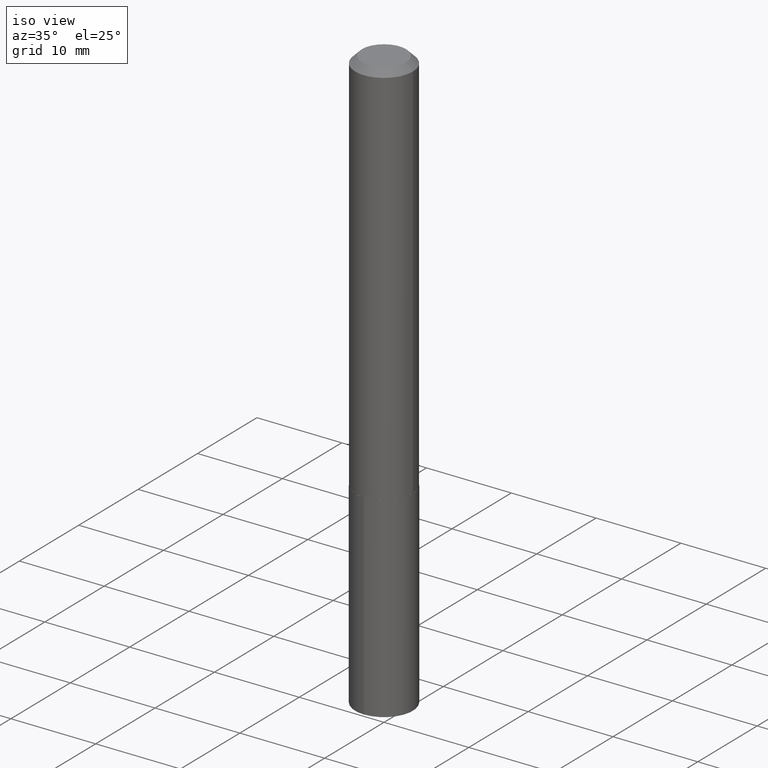
[diagram: clean part render]
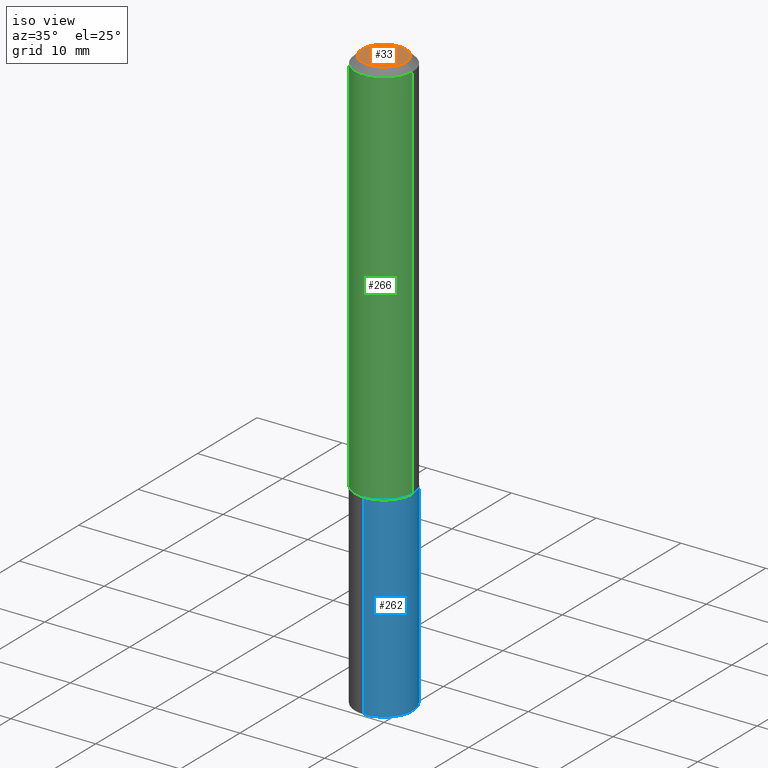
[diagram: same view with three faces highlighted in distinct colors, each labeled with its STEP entity id]
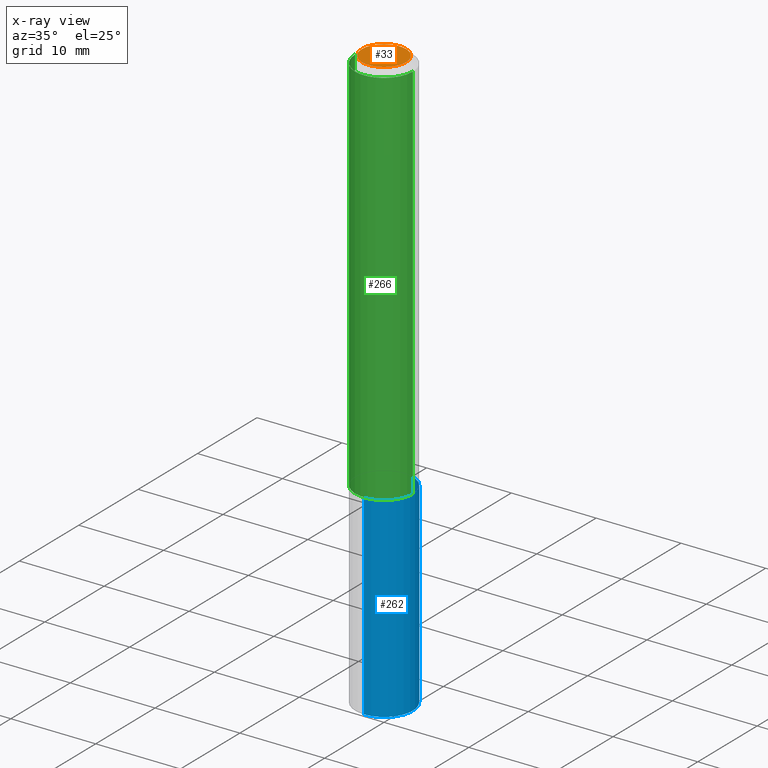
[diagram: x-ray of the same camera — body ghosted, the three highlighted faces saturated]
A machine part, iso view with three faces highlighted in distinct colors.
The next image is the same camera in x-ray (body ghosted, the three faces saturated) — at least one of them is partly hidden behind the body in this view.
Their STEP definitions:

[orange] entity #33 — the highlighted planar face has unit normal (0, -0, -1).
#33 = ADVANCED_FACE ( 'NONE', ( #187 ), #276, .F. ) ;
#42 = ORIENTED_EDGE ( 'NONE', *, *, #190, .T. ) ;
#61 = DIRECTION ( 'NONE',  ( -2.445468806185136597E-29, 3.491481338843145583E-15, 1.000000000000000000 ) ) ;
#71 = CIRCLE ( 'NONE', #145, 0.1025999999999999829 ) ;
#102 = EDGE_CURVE ( 'NONE', #138, #316, #71, .T. ) ;
#106 = DIRECTION ( 'NONE',  ( -2.445468806185136597E-29, 3.491481338843145583E-15, 1.000000000000000000 ) ) ;
#138 = VERTEX_POINT ( 'NONE', #170 ) ;
#145 = AXIS2_PLACEMENT_3D ( 'NONE', #267, #106, #264 ) ;
#165 = ORIENTED_EDGE ( 'NONE', *, *, #102, .T. ) ;
#170 = CARTESIAN_POINT ( 'NONE',  ( 0.1025999999999999829, -8.656367717059636643E-16, -8.199010320285999093E-18 ) ) ;
#187 = FACE_OUTER_BOUND ( 'NONE', #292, .T. ) ;
#190 = EDGE_CURVE ( 'NONE', #316, #138, #207, .T. ) ;
#207 = CIRCLE ( 'NONE', #232, 0.1025999999999999829 ) ;
#232 = AXIS2_PLACEMENT_3D ( 'NONE', #368, #61, #233 ) ;
#233 = DIRECTION ( 'NONE',  ( 1.000000000000000000, -6.982962677686267499E-15, 4.875720559966382131E-29 ) ) ;
#264 = DIRECTION ( 'NONE',  ( 1.000000000000000000, -6.982962677686267499E-15, 4.875720559966382131E-29 ) ) ;
#267 = CARTESIAN_POINT ( 'NONE',  ( 2.005042397986293967E-46, -2.862669153028024165E-32, -8.199010320291530364E-18 ) ) ;
#276 = PLANE ( 'NONE',  #377 ) ;
#277 = CARTESIAN_POINT ( 'NONE',  ( -0.1025999999999999829, 7.710063666500343655E-16, -8.199010320296730375E-18 ) ) ;
#286 = DIRECTION ( 'NONE',  ( -1.000000000000000000, 6.982962677686265922E-15, -4.876176775795935793E-29 ) ) ;
#292 = EDGE_LOOP ( 'NONE', ( #42, #165 ) ) ;
#316 = VERTEX_POINT ( 'NONE', #277 ) ;
#317 = DIRECTION ( 'NONE',  ( 2.438088387897960049E-29, -3.491481338843145188E-15, -1.000000000000000000 ) ) ;
#340 = CARTESIAN_POINT ( 'NONE',  ( 1.002521198993146984E-46, -1.431334576514012082E-32, -4.099505160145765182E-18 ) ) ;
#368 = CARTESIAN_POINT ( 'NONE',  ( 2.005042397986293967E-46, -2.862669153028024165E-32, -8.199010320291530364E-18 ) ) ;
#377 = AXIS2_PLACEMENT_3D ( 'NONE', #340, #317, #286 ) ;

[blue] entity #262 — the highlighted cylindrical surface (edge-blend (fillet) strip) has radius 3.3998 mm, axis along (-0, 0, 1).
#2 = CARTESIAN_POINT ( 'NONE',  ( 4.409424804432420683E-29, -6.295490002068076239E-15, -1.803100000000000147 ) ) ;
#5 = DIRECTION ( 'NONE',  ( -2.446102130504644901E-29, 3.490574382371028182E-15, 1.000000000000000000 ) ) ;
#9 = DIRECTION ( 'NONE',  ( -6.982962677686265133E-15, -1.000000000000000000, 4.081954417130015942E-15 ) ) ;
#24 = DIRECTION ( 'NONE',  ( -2.446102130504644901E-29, 3.490574382371028182E-15, 1.000000000000000000 ) ) ;
#27 = AXIS2_PLACEMENT_3D ( 'NONE', #73, #115, #248 ) ;
#54 = CARTESIAN_POINT ( 'NONE',  ( -9.346695544082625583E-16, -0.1338500000000062973, -1.803099999999999703 ) ) ;
#73 = CARTESIAN_POINT ( 'NONE',  ( 6.636838695077328277E-29, -9.473997460388503922E-15, -2.713697257108548921 ) ) ;
#82 = CARTESIAN_POINT ( 'NONE',  ( 9.510614518149603401E-16, 0.1338499999999936685, -1.803100000000000813 ) ) ;
#83 = AXIS2_PLACEMENT_3D ( 'NONE', #372, #5, #9 ) ;
#108 = EDGE_CURVE ( 'NONE', #259, #124, #205, .T. ) ;
#109 = LINE ( 'NONE', #357, #136 ) ;
#110 = VERTEX_POINT ( 'NONE', #82 ) ;
#112 = EDGE_CURVE ( 'NONE', #259, #169, #373, .T. ) ;
#115 = DIRECTION ( 'NONE',  ( -2.446102130504644901E-29, 3.490574382371028182E-15, 1.000000000000000000 ) ) ;
#124 = VERTEX_POINT ( 'NONE', #54 ) ;
#135 = VECTOR ( 'NONE', #305, 39.37007874015748143 ) ;
#136 = VECTOR ( 'NONE', #308, 39.37007874015748143 ) ;
#169 = VERTEX_POINT ( 'NONE', #240 ) ;
#179 = CARTESIAN_POINT ( 'NONE',  ( -9.346695544082625583E-16, -0.1338500000000062973, -1.803099999999999703 ) ) ;
#184 = ORIENTED_EDGE ( 'NONE', *, *, #112, .T. ) ;
#186 = CARTESIAN_POINT ( 'NONE',  ( -9.346695544082404702E-16, -0.1338500000000095169, -2.713697257108548477 ) ) ;
#189 = CIRCLE ( 'NONE', #83, 0.1338499999999999968 ) ;
#198 = EDGE_CURVE ( 'NONE', #124, #110, #189, .T. ) ;
#205 = LINE ( 'NONE', #179, #135 ) ;
#217 = DIRECTION ( 'NONE',  ( -6.982962677686265133E-15, -1.000000000000000000, 4.081954417130015942E-15 ) ) ;
#240 = CARTESIAN_POINT ( 'NONE',  ( 9.510614518149607345E-16, 0.1338499999999905321, -2.713697257108549810 ) ) ;
#242 = AXIS2_PLACEMENT_3D ( 'NONE', #2, #24, #217 ) ;
#248 = DIRECTION ( 'NONE',  ( -6.982962677686265133E-15, -1.000000000000000000, 4.081954417130015942E-15 ) ) ;
#259 = VERTEX_POINT ( 'NONE', #186 ) ;
#262 = ADVANCED_FACE ( 'NONE', ( #301 ), #360, .T. ) ;
#301 = FACE_OUTER_BOUND ( 'NONE', #325, .T. ) ;
#305 = DIRECTION ( 'NONE',  ( -2.446102130504645182E-29, 3.490574382371027788E-15, 1.000000000000000000 ) ) ;
#308 = DIRECTION ( 'NONE',  ( -2.446102130504645182E-29, 3.490574382371027788E-15, 1.000000000000000000 ) ) ;
#325 = EDGE_LOOP ( 'NONE', ( #184, #370, #337, #374 ) ) ;
#337 = ORIENTED_EDGE ( 'NONE', *, *, #198, .F. ) ;
#342 = EDGE_CURVE ( 'NONE', #169, #110, #109, .T. ) ;
#357 = CARTESIAN_POINT ( 'NONE',  ( 9.510614518149380547E-16, 0.1338499999999936962, -1.803100000000000813 ) ) ;
#360 = CYLINDRICAL_SURFACE ( 'NONE', #242, 0.1338499999999999968 ) ;
#370 = ORIENTED_EDGE ( 'NONE', *, *, #342, .T. ) ;
#372 = CARTESIAN_POINT ( 'NONE',  ( 4.409424804432420683E-29, -6.295490002068076239E-15, -1.803100000000000147 ) ) ;
#373 = CIRCLE ( 'NONE', #27, 0.1338499999999999968 ) ;
#374 = ORIENTED_EDGE ( 'NONE', *, *, #108, .F. ) ;

[green] entity #266 — the highlighted cylindrical surface (edge-blend (fillet) strip) has radius 3.3998 mm, axis along (-0, 0, 1).
#11 = VECTOR ( 'NONE', #118, 39.37007874015748143 ) ;
#12 = CARTESIAN_POINT ( 'NONE',  ( -0.1338499999999999968, -2.250365074803857250E-15, -0.03125000000000022898 ) ) ;
#19 = AXIS2_PLACEMENT_3D ( 'NONE', #288, #92, #323 ) ;
#29 = FACE_OUTER_BOUND ( 'NONE', #143, .T. ) ;
#30 = ORIENTED_EDGE ( 'NONE', *, *, #234, .F. ) ;
#66 = CYLINDRICAL_SURFACE ( 'NONE', #338, 0.1338500000000001078 ) ;
#91 = CARTESIAN_POINT ( 'NONE',  ( 0.1338500000000001910, -7.228413815806964033E-15, -1.802600000000000646 ) ) ;
#92 = DIRECTION ( 'NONE',  ( -2.445468806185136597E-29, 3.491481338843145583E-15, 1.000000000000000000 ) ) ;
#93 = VECTOR ( 'NONE', #306, 39.37007874015748143 ) ;
#101 = CARTESIAN_POINT ( 'NONE',  ( 0.1338499999999999968, -1.043778346247155835E-15, -0.03125000000000022898 ) ) ;
#113 = DIRECTION ( 'NONE',  ( 1.000000000000000000, -6.982962677686266711E-15, 4.876176775795934672E-29 ) ) ;
#114 = LINE ( 'NONE', #366, #11 ) ;
#118 = DIRECTION ( 'NONE',  ( -2.445468806185136877E-29, 3.491481338843145188E-15, 1.000000000000000000 ) ) ;
#119 = LINE ( 'NONE', #252, #93 ) ;
#132 = VERTEX_POINT ( 'NONE', #260 ) ;
#141 = VERTEX_POINT ( 'NONE', #101 ) ;
#143 = EDGE_LOOP ( 'NONE', ( #158, #281, #149, #30 ) ) ;
#147 = VERTEX_POINT ( 'NONE', #12 ) ;
#149 = ORIENTED_EDGE ( 'NONE', *, *, #250, .T. ) ;
#153 = CIRCLE ( 'NONE', #19, 0.1338500000000001910 ) ;
#158 = ORIENTED_EDGE ( 'NONE', *, *, #371, .F. ) ;
#183 = DIRECTION ( 'NONE',  ( -2.445468806185136597E-29, 3.491481338843145583E-15, 1.000000000000000000 ) ) ;
#193 = DIRECTION ( 'NONE',  ( 1.000000000000000000, -6.982962677686266711E-15, 0.000000000000000000 ) ) ;
#234 = EDGE_CURVE ( 'NONE', #147, #141, #270, .T. ) ;
#250 = EDGE_CURVE ( 'NONE', #279, #141, #119, .T. ) ;
#252 = CARTESIAN_POINT ( 'NONE',  ( 0.1338500000000001078, -9.346695544083075234E-16, 6.526762614402863887E-30 ) ) ;
#258 = DIRECTION ( 'NONE',  ( -2.445468806185136597E-29, 3.491481338843145583E-15, 1.000000000000000000 ) ) ;
#260 = CARTESIAN_POINT ( 'NONE',  ( -0.1338500000000001910, -5.342682809583759673E-15, -1.802600000000000646 ) ) ;
#266 = ADVANCED_FACE ( 'NONE', ( #29 ), #66, .T. ) ;
#270 = CIRCLE ( 'NONE', #349, 0.1338499999999999968 ) ;
#273 = CARTESIAN_POINT ( 'NONE',  ( 0.000000000000000000, 0.000000000000000000, 0.000000000000000000 ) ) ;
#279 = VERTEX_POINT ( 'NONE', #91 ) ;
#281 = ORIENTED_EDGE ( 'NONE', *, *, #283, .T. ) ;
#283 = EDGE_CURVE ( 'NONE', #132, #279, #153, .T. ) ;
#288 = CARTESIAN_POINT ( 'NONE',  ( 4.408202070029328442E-29, -6.293744261398656313E-15, -1.802600000000000646 ) ) ;
#306 = DIRECTION ( 'NONE',  ( -2.445468806185136877E-29, 3.491481338843145188E-15, 1.000000000000000000 ) ) ;
#323 = DIRECTION ( 'NONE',  ( 1.000000000000000000, -6.982962677686265133E-15, 0.000000000000000000 ) ) ;
#338 = AXIS2_PLACEMENT_3D ( 'NONE', #273, #183, #113 ) ;
#346 = CARTESIAN_POINT ( 'NONE',  ( 7.642090019328607041E-31, -1.091087918388490883E-16, -0.03125000000000022898 ) ) ;
#349 = AXIS2_PLACEMENT_3D ( 'NONE', #346, #258, #193 ) ;
#366 = CARTESIAN_POINT ( 'NONE',  ( -0.1338500000000001078, 9.510614518148948646E-16, -6.583994618306196527E-30 ) ) ;
#371 = EDGE_CURVE ( 'NONE', #132, #147, #114, .T. ) ;